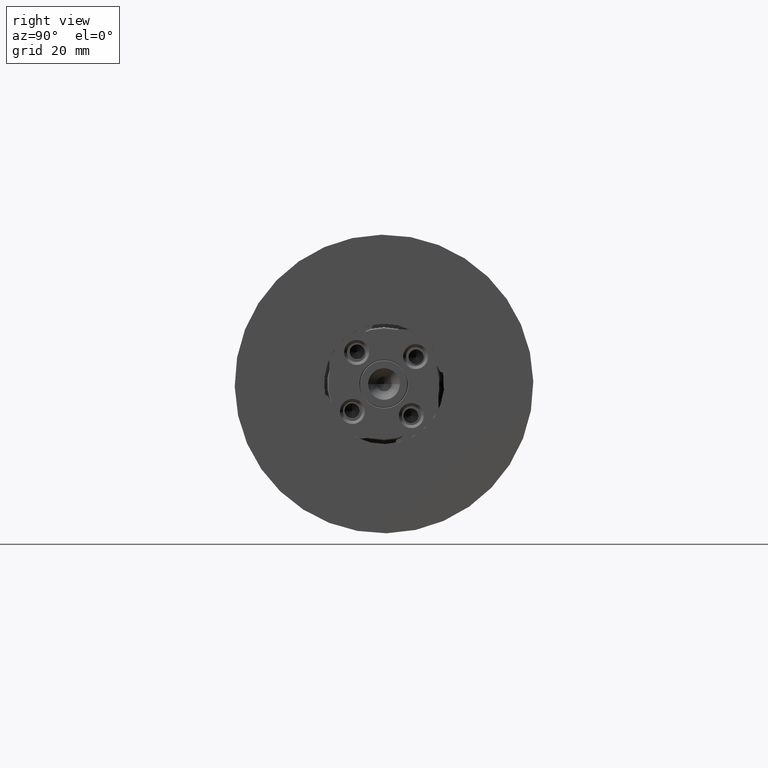
[diagram: clean part render]
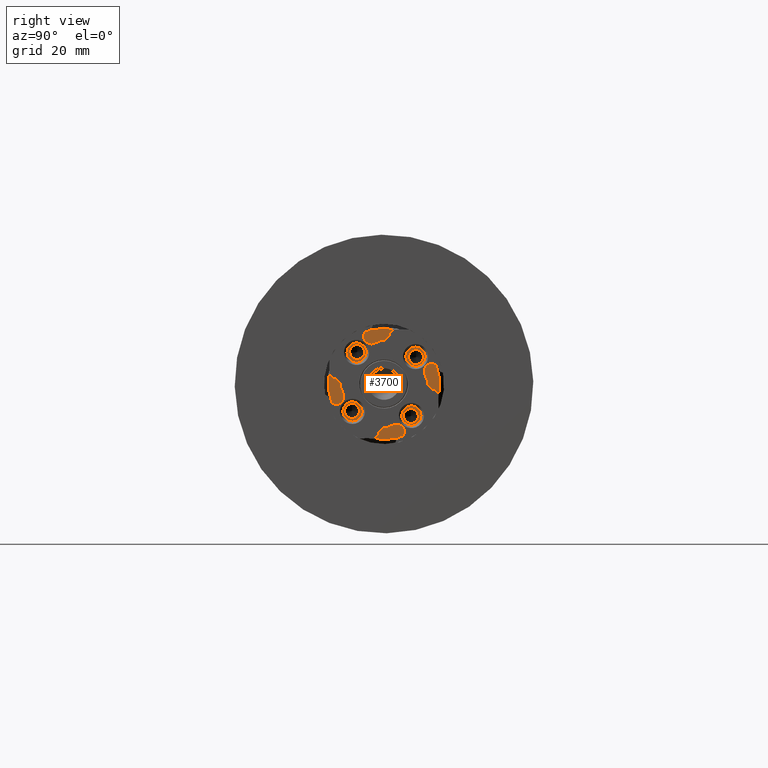
[diagram: same view with one face highlighted and labeled with its STEP entity id]
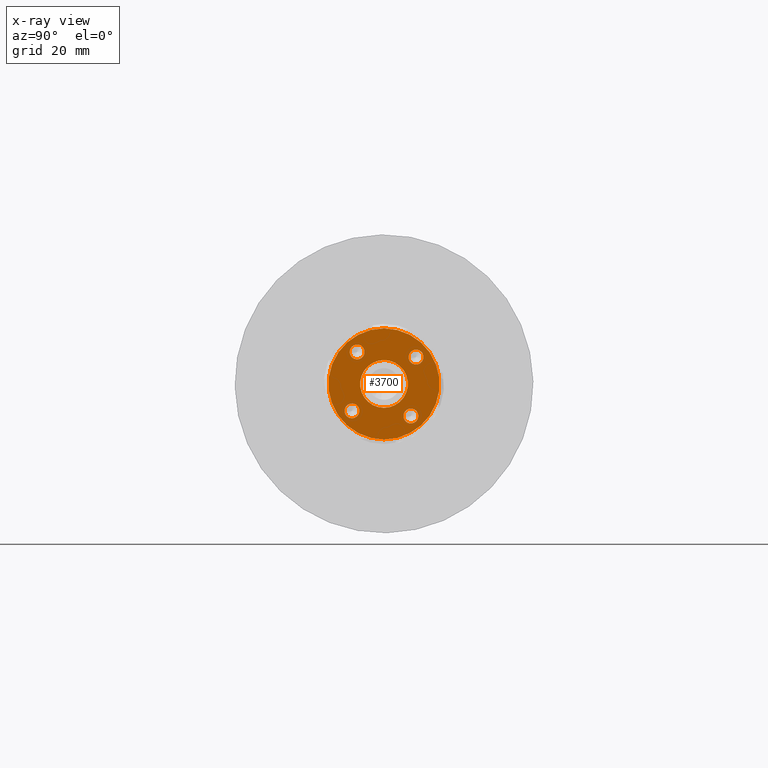
[diagram: x-ray of the same camera — body ghosted, the highlighted face saturated]
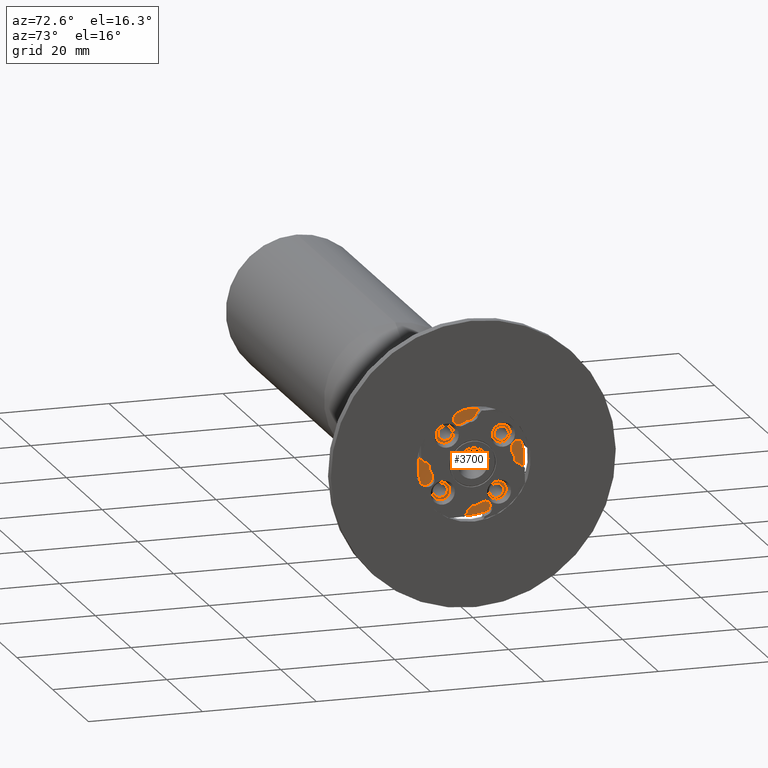
[diagram: same view with one face highlighted and labeled with its STEP entity id]
A machine part, right view. The second image highlights one B-rep face of the part: STEP entity #3700.
The next image is the same camera in x-ray: the body ghosted, the highlighted face saturated — about 0% of this face is hidden behind the body in this view.
A second angle (auxiliary view) of the same face is appended — the face is thin or edge-on in the first view.
In plain terms, the highlighted planar face has unit normal (1, 0, 0).
Its self-contained STEP definition (entity closure, byte-faithful):
#14 = EDGE_LOOP ( 'NONE', ( #156, #213 ) ) ;
#15 = CARTESIAN_POINT ( 'NONE',  ( -1.199999999999998623, 5.362311101832839988, 4.499513267805783201 ) ) ;
#38 = DIRECTION ( 'NONE',  ( 0.0000000000000000000, 0.0000000000000000000, -1.000000000000000000 ) ) ;
#44 = DIRECTION ( 'NONE',  ( 0.0000000000000000000, 0.0000000000000000000, -1.000000000000000000 ) ) ;
#53 = CARTESIAN_POINT ( 'NONE',  ( -1.199999999999998623, -5.362311101832839988, -4.499513267805783201 ) ) ;
#120 = DIRECTION ( 'NONE',  ( 0.0000000000000000000, 0.0000000000000000000, -1.000000000000000000 ) ) ;
#124 = EDGE_CURVE ( 'NONE', #3387, #3920, #3229, .T. ) ;
#144 = ORIENTED_EDGE ( 'NONE', *, *, #124, .F. ) ;
#154 = ORIENTED_EDGE ( 'NONE', *, *, #396, .F. ) ;
#156 = ORIENTED_EDGE ( 'NONE', *, *, #2728, .F. ) ;
#178 = AXIS2_PLACEMENT_3D ( 'NONE', #3070, #1100, #120 ) ;
#213 = ORIENTED_EDGE ( 'NONE', *, *, #2063, .F. ) ;
#314 = CARTESIAN_POINT ( 'NONE',  ( -1.199999999999999956, 4.000000000000000000, 0.0000000000000000000 ) ) ;
#353 = CARTESIAN_POINT ( 'NONE',  ( -1.199999999999999956, 0.0000000000000000000, -4.000000000000000000 ) ) ;
#358 = DIRECTION ( 'NONE',  ( 1.000000000000000000, -0.0000000000000000000, -0.0000000000000000000 ) ) ;
#390 = VERTEX_POINT ( 'NONE', #3370 ) ;
#391 = DIRECTION ( 'NONE',  ( 1.000000000000000000, -0.0000000000000000000, -0.0000000000000000000 ) ) ;
#394 = EDGE_LOOP ( 'NONE', ( #144, #3100 ) ) ;
#396 = EDGE_CURVE ( 'NONE', #3574, #390, #1058, .T. ) ;
#399 = CARTESIAN_POINT ( 'NONE',  ( -1.199999999999998623, 5.362311101832839988, 5.749513267805771655 ) ) ;
#439 = CARTESIAN_POINT ( 'NONE',  ( -1.199999999999998623, 4.499513267805839156, -5.362311101832792914 ) ) ;
#572 = VERTEX_POINT ( 'NONE', #3733 ) ;
#587 = ORIENTED_EDGE ( 'NONE', *, *, #2447, .F. ) ;
#602 = CIRCLE ( 'NONE', #1756, 1.249999999999988898 ) ;
#608 = AXIS2_PLACEMENT_3D ( 'NONE', #4192, #2616, #2894 ) ;
#650 = DIRECTION ( 'NONE',  ( 0.0000000000000000000, 0.0000000000000000000, -1.000000000000000000 ) ) ;
#674 = DIRECTION ( 'NONE',  ( -0.0000000000000000000, 0.0000000000000000000, -1.000000000000000000 ) ) ;
#700 = DIRECTION ( 'NONE',  ( 1.000000000000000000, -0.0000000000000000000, -0.0000000000000000000 ) ) ;
#727 = AXIS2_PLACEMENT_3D ( 'NONE', #439, #391, #790 ) ;
#771 = VERTEX_POINT ( 'NONE', #1432 ) ;
#790 = DIRECTION ( 'NONE',  ( 0.0000000000000000000, 0.0000000000000000000, -1.000000000000000000 ) ) ;
#795 = ORIENTED_EDGE ( 'NONE', *, *, #4104, .T. ) ;
#816 = VERTEX_POINT ( 'NONE', #1739 ) ;
#830 = AXIS2_PLACEMENT_3D ( 'NONE', #1297, #3573, #2539 ) ;
#919 = ORIENTED_EDGE ( 'NONE', *, *, #3705, .T. ) ;
#922 = CIRCLE ( 'NONE', #1337, 4.000000000000000000 ) ;
#1036 = DIRECTION ( 'NONE',  ( 0.0000000000000000000, 0.0000000000000000000, -1.000000000000000000 ) ) ;
#1037 = DIRECTION ( 'NONE',  ( 0.0000000000000000000, 0.0000000000000000000, -1.000000000000000000 ) ) ;
#1058 = CIRCLE ( 'NONE', #178, 1.249999999999988898 ) ;
#1100 = DIRECTION ( 'NONE',  ( 1.000000000000000000, -0.0000000000000000000, -0.0000000000000000000 ) ) ;
#1122 = DIRECTION ( 'NONE',  ( 1.000000000000000000, -0.0000000000000000000, -0.0000000000000000000 ) ) ;
#1188 = AXIS2_PLACEMENT_3D ( 'NONE', #314, #1642, #674 ) ;
#1276 = VERTEX_POINT ( 'NONE', #2982 ) ;
#1296 = EDGE_CURVE ( 'NONE', #3773, #771, #602, .T. ) ;
#1297 = CARTESIAN_POINT ( 'NONE',  ( -1.199999999999998623, -4.499513267805801853, 5.362311101832824001 ) ) ;
#1333 = FACE_BOUND ( 'NONE', #3512, .T. ) ;
#1334 = CIRCLE ( 'NONE', #727, 1.249999999999988898 ) ;
#1336 = CARTESIAN_POINT ( 'NONE',  ( -1.199999999999998623, 4.499513267805839156, -5.362311101832792914 ) ) ;
#1337 = AXIS2_PLACEMENT_3D ( 'NONE', #3968, #1697, #1037 ) ;
#1340 = DIRECTION ( 'NONE',  ( 1.000000000000000000, -0.0000000000000000000, -0.0000000000000000000 ) ) ;
#1424 = ORIENTED_EDGE ( 'NONE', *, *, #2698, .F. ) ;
#1432 = CARTESIAN_POINT ( 'NONE',  ( -1.199999999999998623, 5.362311101832839988, 3.249513267805793859 ) ) ;
#1477 = AXIS2_PLACEMENT_3D ( 'NONE', #15, #2322, #650 ) ;
#1491 = FACE_OUTER_BOUND ( 'NONE', #2661, .T. ) ;
#1545 = DIRECTION ( 'NONE',  ( 1.000000000000000000, -0.0000000000000000000, -0.0000000000000000000 ) ) ;
#1642 = DIRECTION ( 'NONE',  ( 1.000000000000000000, 0.0000000000000000000, -0.0000000000000000000 ) ) ;
#1671 = AXIS2_PLACEMENT_3D ( 'NONE', #1336, #358, #38 ) ;
#1686 = CIRCLE ( 'NONE', #1477, 1.249999999999988898 ) ;
#1697 = DIRECTION ( 'NONE',  ( 1.000000000000000000, -0.0000000000000000000, -0.0000000000000000000 ) ) ;
#1739 = CARTESIAN_POINT ( 'NONE',  ( -1.199999999999999956, 1.151167991198511536E-15, -9.299999999999997158 ) ) ;
#1756 = AXIS2_PLACEMENT_3D ( 'NONE', #3631, #1340, #44 ) ;
#1882 = CIRCLE ( 'NONE', #1932, 1.249999999999988898 ) ;
#1889 = AXIS2_PLACEMENT_3D ( 'NONE', #2106, #1122, #3084 ) ;
#1932 = AXIS2_PLACEMENT_3D ( 'NONE', #53, #2017, #2362 ) ;
#1938 = CIRCLE ( 'NONE', #830, 1.249999999999988898 ) ;
#2017 = DIRECTION ( 'NONE',  ( 1.000000000000000000, -0.0000000000000000000, -0.0000000000000000000 ) ) ;
#2051 = CARTESIAN_POINT ( 'NONE',  ( -1.199999999999998623, 4.499513267805839156, -4.112311101832803573 ) ) ;
#2053 = AXIS2_PLACEMENT_3D ( 'NONE', #3287, #700, #1036 ) ;
#2063 = EDGE_CURVE ( 'NONE', #572, #3728, #3879, .T. ) ;
#2106 = CARTESIAN_POINT ( 'NONE',  ( -1.199999999999999956, 0.0000000000000000000, 0.0000000000000000000 ) ) ;
#2322 = DIRECTION ( 'NONE',  ( 1.000000000000000000, -0.0000000000000000000, -0.0000000000000000000 ) ) ;
#2362 = DIRECTION ( 'NONE',  ( 0.0000000000000000000, 0.0000000000000000000, -1.000000000000000000 ) ) ;
#2385 = ORIENTED_EDGE ( 'NONE', *, *, #1296, .F. ) ;
#2396 = VERTEX_POINT ( 'NONE', #2051 ) ;
#2447 = EDGE_CURVE ( 'NONE', #2396, #1276, #1334, .T. ) ;
#2474 = DIRECTION ( 'NONE',  ( 0.0000000000000000000, 0.0000000000000000000, -1.000000000000000000 ) ) ;
#2514 = FACE_BOUND ( 'NONE', #14, .T. ) ;
#2521 = EDGE_LOOP ( 'NONE', ( #1424, #587 ) ) ;
#2539 = DIRECTION ( 'NONE',  ( 0.0000000000000000000, 0.0000000000000000000, -1.000000000000000000 ) ) ;
#2616 = DIRECTION ( 'NONE',  ( 1.000000000000000000, -0.0000000000000000000, -0.0000000000000000000 ) ) ;
#2661 = EDGE_LOOP ( 'NONE', ( #795, #919 ) ) ;
#2679 = CARTESIAN_POINT ( 'NONE',  ( -1.199999999999999956, 0.0000000000000000000, 9.299999999999997158 ) ) ;
#2698 = EDGE_CURVE ( 'NONE', #1276, #2396, #3677, .T. ) ;
#2728 = EDGE_CURVE ( 'NONE', #3728, #572, #922, .T. ) ;
#2763 = EDGE_LOOP ( 'NONE', ( #154, #3431 ) ) ;
#2769 = AXIS2_PLACEMENT_3D ( 'NONE', #3487, #1545, #2474 ) ;
#2894 = DIRECTION ( 'NONE',  ( 0.0000000000000000000, 0.0000000000000000000, -1.000000000000000000 ) ) ;
#2980 = EDGE_CURVE ( 'NONE', #3920, #3387, #1882, .T. ) ;
#2982 = CARTESIAN_POINT ( 'NONE',  ( -1.199999999999998623, 4.499513267805839156, -6.612311101832782256 ) ) ;
#3070 = CARTESIAN_POINT ( 'NONE',  ( -1.199999999999998623, -4.499513267805801853, 5.362311101832824001 ) ) ;
#3084 = DIRECTION ( 'NONE',  ( 0.0000000000000000000, 0.0000000000000000000, -1.000000000000000000 ) ) ;
#3100 = ORIENTED_EDGE ( 'NONE', *, *, #2980, .F. ) ;
#3208 = FACE_BOUND ( 'NONE', #394, .T. ) ;
#3229 = CIRCLE ( 'NONE', #608, 1.249999999999988898 ) ;
#3287 = CARTESIAN_POINT ( 'NONE',  ( -1.199999999999999956, 0.0000000000000000000, 0.0000000000000000000 ) ) ;
#3303 = PLANE ( 'NONE',  #1188 ) ;
#3366 = EDGE_CURVE ( 'NONE', #390, #3574, #1938, .T. ) ;
#3370 = CARTESIAN_POINT ( 'NONE',  ( -1.199999999999998623, -4.499513267805801853, 6.612311101832813343 ) ) ;
#3387 = VERTEX_POINT ( 'NONE', #3508 ) ;
#3388 = EDGE_CURVE ( 'NONE', #771, #3773, #1686, .T. ) ;
#3431 = ORIENTED_EDGE ( 'NONE', *, *, #3366, .F. ) ;
#3477 = FACE_BOUND ( 'NONE', #2763, .T. ) ;
#3487 = CARTESIAN_POINT ( 'NONE',  ( -1.199999999999999956, 0.0000000000000000000, 0.0000000000000000000 ) ) ;
#3504 = CARTESIAN_POINT ( 'NONE',  ( -1.199999999999998623, -4.499513267805801853, 4.112311101832835547 ) ) ;
#3508 = CARTESIAN_POINT ( 'NONE',  ( -1.199999999999998623, -5.362311101832839988, -5.749513267805771655 ) ) ;
#3512 = EDGE_LOOP ( 'NONE', ( #3661, #2385 ) ) ;
#3573 = DIRECTION ( 'NONE',  ( 1.000000000000000000, -0.0000000000000000000, -0.0000000000000000000 ) ) ;
#3574 = VERTEX_POINT ( 'NONE', #3504 ) ;
#3576 = FACE_BOUND ( 'NONE', #2521, .T. ) ;
#3631 = CARTESIAN_POINT ( 'NONE',  ( -1.199999999999998623, 5.362311101832839988, 4.499513267805783201 ) ) ;
#3661 = ORIENTED_EDGE ( 'NONE', *, *, #3388, .F. ) ;
#3677 = CIRCLE ( 'NONE', #1671, 1.249999999999988898 ) ;
#3700 = ADVANCED_FACE ( 'NONE', ( #3576, #3208, #3477, #1333, #1491, #2514 ), #3303, .T. ) ;
#3705 = EDGE_CURVE ( 'NONE', #816, #3794, #3934, .T. ) ;
#3728 = VERTEX_POINT ( 'NONE', #353 ) ;
#3733 = CARTESIAN_POINT ( 'NONE',  ( -1.199999999999999956, 4.898587196589412829E-16, 4.000000000000000000 ) ) ;
#3773 = VERTEX_POINT ( 'NONE', #399 ) ;
#3794 = VERTEX_POINT ( 'NONE', #2679 ) ;
#3879 = CIRCLE ( 'NONE', #1889, 4.000000000000000000 ) ;
#3920 = VERTEX_POINT ( 'NONE', #4065 ) ;
#3934 = CIRCLE ( 'NONE', #2053, 9.299999999999997158 ) ;
#3940 = CIRCLE ( 'NONE', #2769, 9.299999999999997158 ) ;
#3968 = CARTESIAN_POINT ( 'NONE',  ( -1.199999999999999956, 0.0000000000000000000, 0.0000000000000000000 ) ) ;
#4065 = CARTESIAN_POINT ( 'NONE',  ( -1.199999999999998623, -5.362311101832839988, -3.249513267805793859 ) ) ;
#4104 = EDGE_CURVE ( 'NONE', #3794, #816, #3940, .T. ) ;
#4192 = CARTESIAN_POINT ( 'NONE',  ( -1.199999999999998623, -5.362311101832839988, -4.499513267805783201 ) ) ;